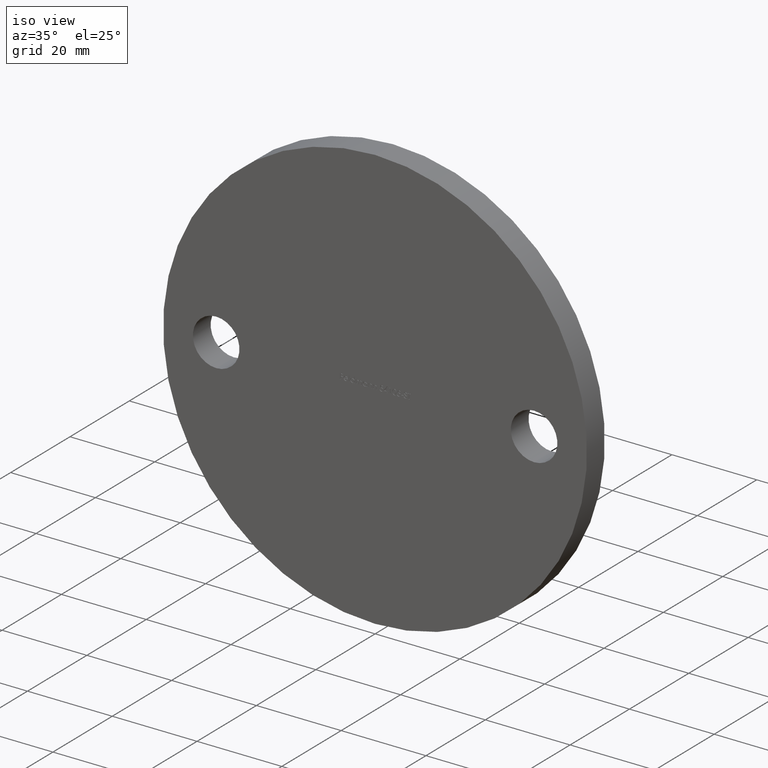
[diagram: clean part render]
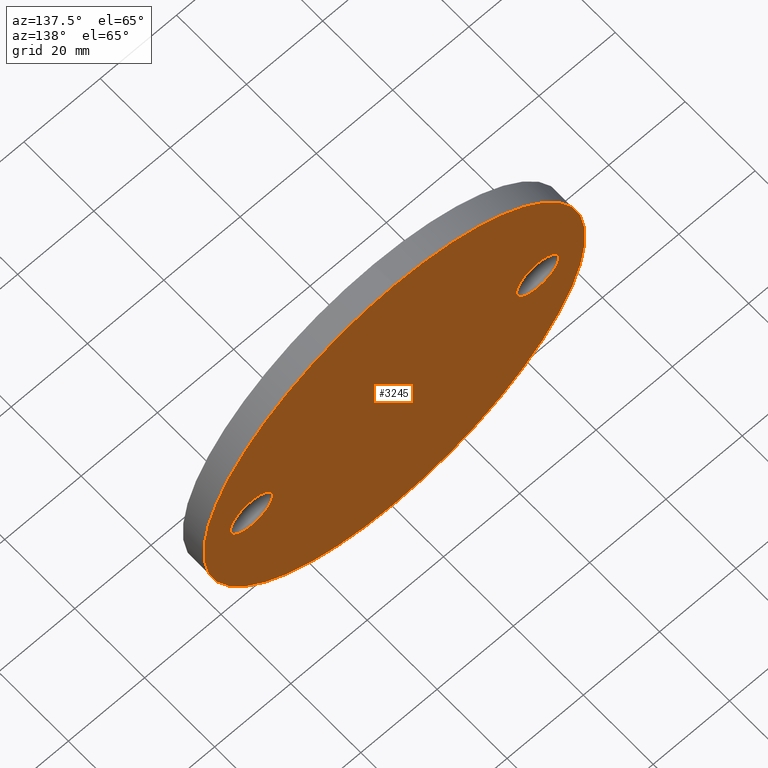
[diagram: tour spotlight — one face highlighted and labeled with its STEP entity id]
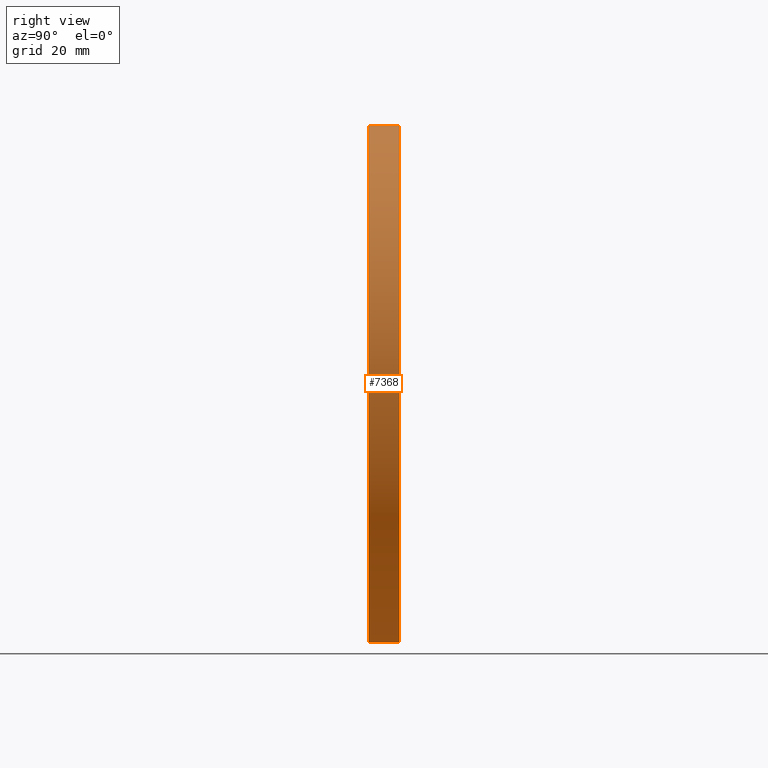
[diagram: tour spotlight — one face highlighted and labeled with its STEP entity id]
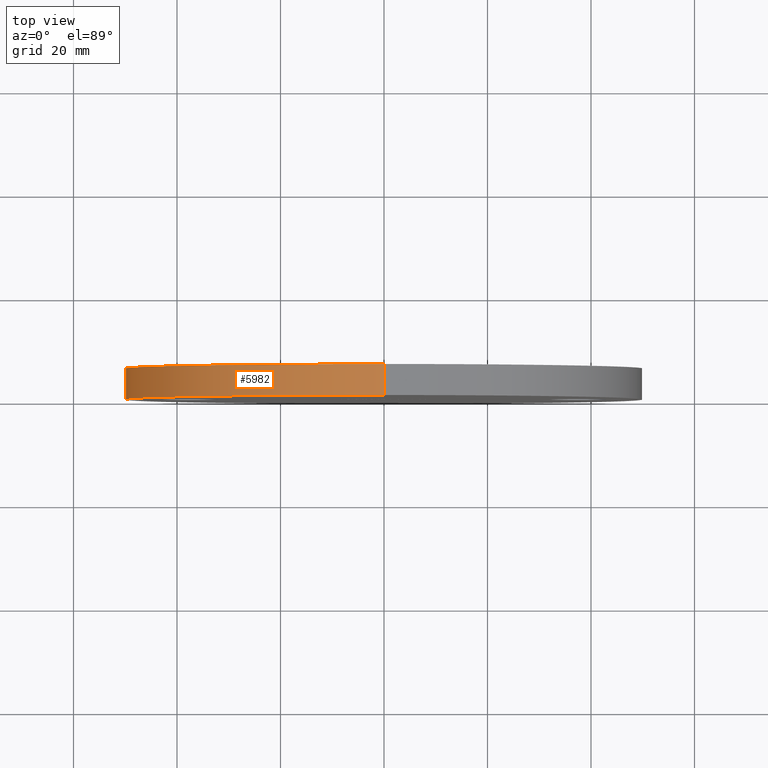
[diagram: tour spotlight — one face highlighted and labeled with its STEP entity id]
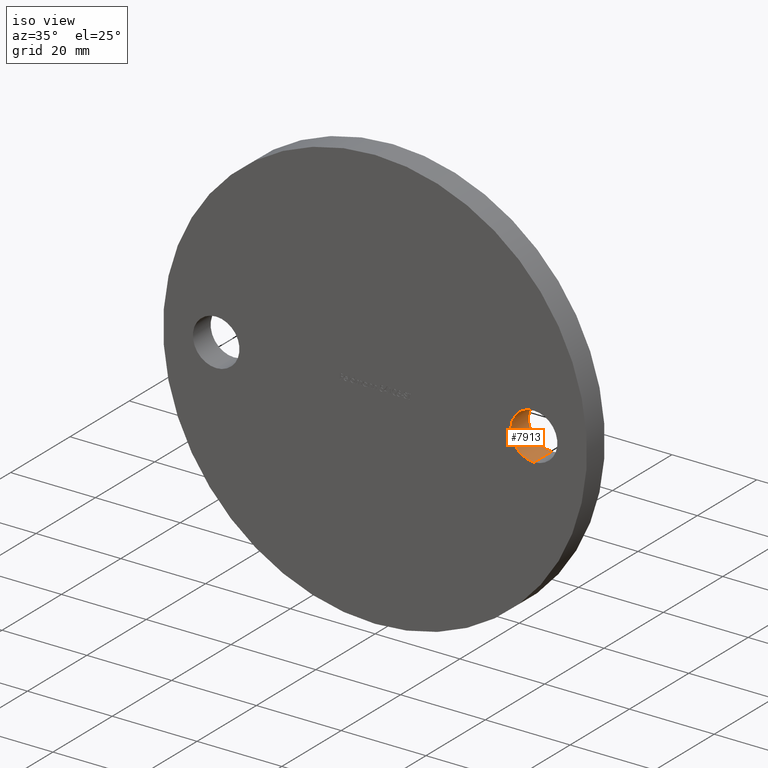
[diagram: tour spotlight — one face highlighted and labeled with its STEP entity id]
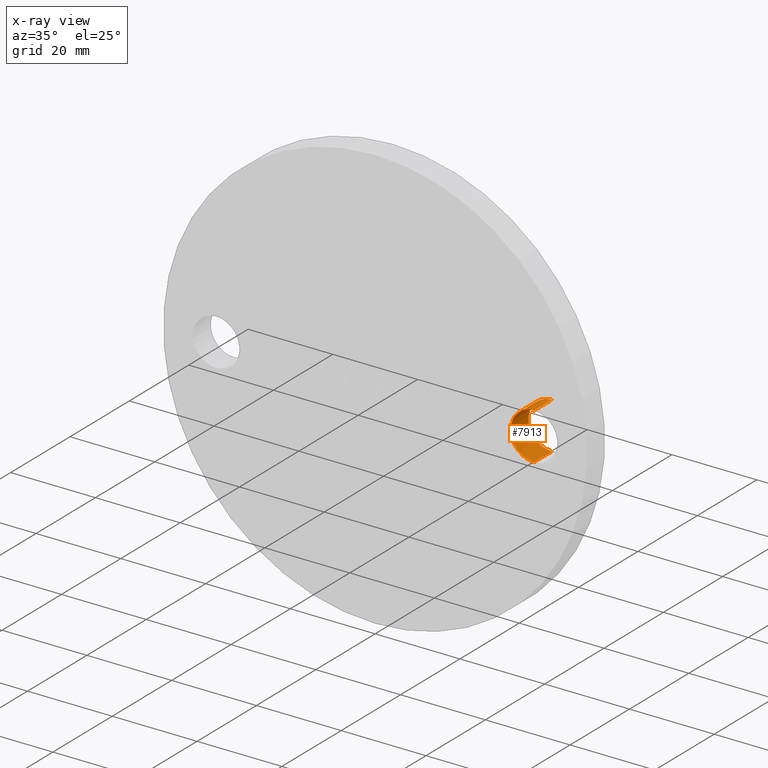
[diagram: x-ray of the same camera — body ghosted, this tour face saturated]
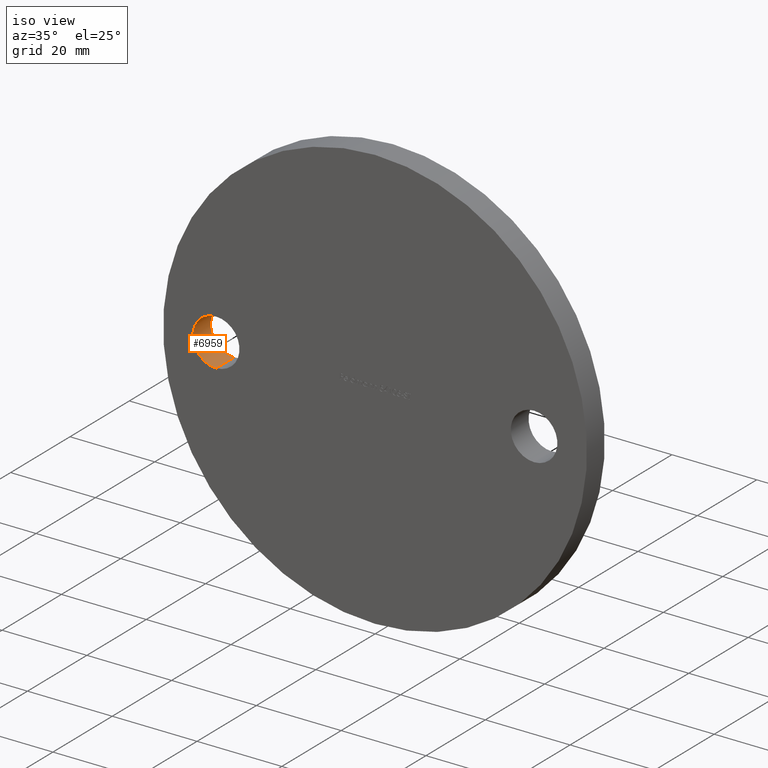
[diagram: tour spotlight — one face highlighted and labeled with its STEP entity id]
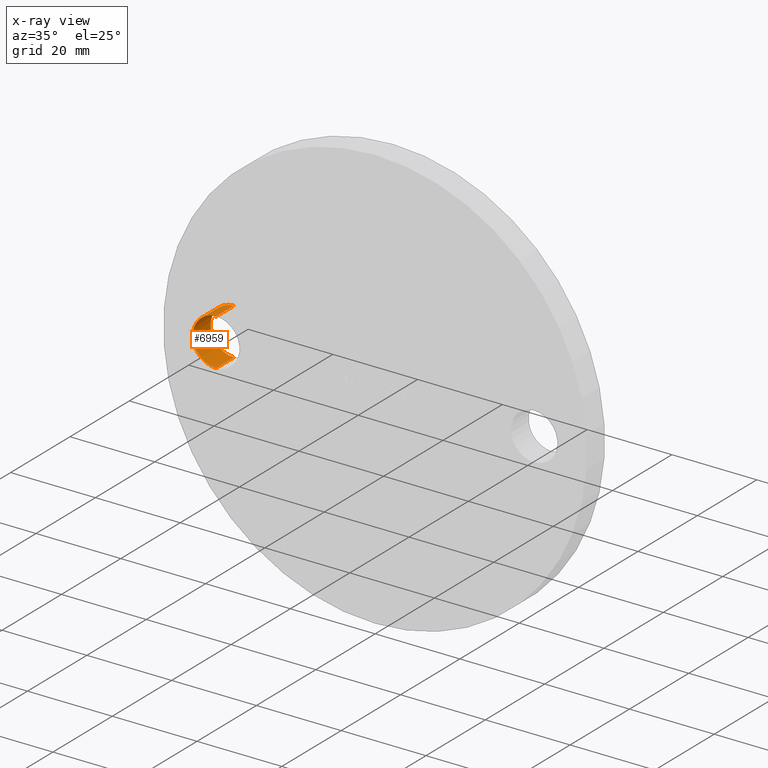
[diagram: x-ray of the same camera — body ghosted, this tour face saturated]
A machine part: a face-by-face anatomy tour. The part has 216 B-rep faces; the first image is the clean iso view, then the 5 largest visible faces are spotlighted one at a time (largest first), each with its STEP entity span.

Face 1 — auxiliary view, entity #3245. In plain terms, the highlighted planar face has unit normal (0, 1, 0).
Definition (entity closure, byte-faithful):
#35 = CARTESIAN_POINT ( 'NONE',  ( 0.0000000000000000000, 6.000000000000000000, 0.0000000000000000000 ) ) ;
#225 = EDGE_LOOP ( 'NONE', ( #6736, #2385 ) ) ;
#553 = DIRECTION ( 'NONE',  ( 0.0000000000000000000, 0.0000000000000000000, 1.000000000000000000 ) ) ;
#581 = EDGE_CURVE ( 'NONE', #11253, #3163, #9006, .T. ) ;
#842 = AXIS2_PLACEMENT_3D ( 'NONE', #1707, #7835, #4285 ) ;
#844 = CARTESIAN_POINT ( 'NONE',  ( -37.50000000000000000, 6.000000000000000000, 0.0000000000000000000 ) ) ;
#884 = DIRECTION ( 'NONE',  ( 0.0000000000000000000, -0.0000000000000000000, 1.000000000000000000 ) ) ;
#927 = ORIENTED_EDGE ( 'NONE', *, *, #11009, .F. ) ;
#1011 = DIRECTION ( 'NONE',  ( 0.0000000000000000000, 0.0000000000000000000, 1.000000000000000000 ) ) ;
#1263 = CARTESIAN_POINT ( 'NONE',  ( -37.50000000000000000, 6.000000000000000000, -5.499999999999996400 ) ) ;
#1707 = CARTESIAN_POINT ( 'NONE',  ( 37.50000000000000000, 6.000000000000000000, -9.184850993605148700E-015 ) ) ;
#2039 = EDGE_CURVE ( 'NONE', #3080, #7350, #7814, .T. ) ;
#2385 = ORIENTED_EDGE ( 'NONE', *, *, #6597, .T. ) ;
#2406 = DIRECTION ( 'NONE',  ( 0.0000000000000000000, 0.0000000000000000000, 1.000000000000000000 ) ) ;
#2523 = DIRECTION ( 'NONE',  ( 0.0000000000000000000, 1.000000000000000000, 0.0000000000000000000 ) ) ;
#2583 = AXIS2_PLACEMENT_3D ( 'NONE', #3659, #2819, #1011 ) ;
#2648 = DIRECTION ( 'NONE',  ( 0.0000000000000000000, 1.000000000000000000, 0.0000000000000000000 ) ) ;
#2804 = EDGE_CURVE ( 'NONE', #4456, #6215, #8760, .T. ) ;
#2819 = DIRECTION ( 'NONE',  ( 0.0000000000000000000, 1.000000000000000000, 0.0000000000000000000 ) ) ;
#2872 = ORIENTED_EDGE ( 'NONE', *, *, #2804, .F. ) ;
#3068 = AXIS2_PLACEMENT_3D ( 'NONE', #35, #2648, #7813 ) ;
#3080 = VERTEX_POINT ( 'NONE', #9711 ) ;
#3163 = VERTEX_POINT ( 'NONE', #9993 ) ;
#3238 = CARTESIAN_POINT ( 'NONE',  ( 37.50000000000000000, 6.000000000000000000, -9.184850993605148700E-015 ) ) ;
#3245 = ADVANCED_FACE ( 'NONE', ( #10244, #8625, #8490 ), #8692, .T. ) ;
#3599 = AXIS2_PLACEMENT_3D ( 'NONE', #844, #7974, #4349 ) ;
#3659 = CARTESIAN_POINT ( 'NONE',  ( 0.0000000000000000000, 6.000000000000000000, 0.0000000000000000000 ) ) ;
#4192 = EDGE_CURVE ( 'NONE', #6215, #4456, #10239, .T. ) ;
#4285 = DIRECTION ( 'NONE',  ( 0.0000000000000000000, 0.0000000000000000000, 1.000000000000000000 ) ) ;
#4349 = DIRECTION ( 'NONE',  ( 0.0000000000000000000, 0.0000000000000000000, 1.000000000000000000 ) ) ;
#4456 = VERTEX_POINT ( 'NONE', #9831 ) ;
#4681 = EDGE_LOOP ( 'NONE', ( #6340, #927 ) ) ;
#4859 = CIRCLE ( 'NONE', #842, 5.499999999999996400 ) ;
#5243 = DIRECTION ( 'NONE',  ( 0.0000000000000000000, 1.000000000000000000, 0.0000000000000000000 ) ) ;
#5781 = DIRECTION ( 'NONE',  ( 0.0000000000000000000, 1.000000000000000000, 0.0000000000000000000 ) ) ;
#5890 = CARTESIAN_POINT ( 'NONE',  ( -37.50000000000000000, 6.000000000000000000, 0.0000000000000000000 ) ) ;
#6011 = CARTESIAN_POINT ( 'NONE',  ( 6.123233995736766100E-015, 6.000000000000000000, 50.00000000000000000 ) ) ;
#6215 = VERTEX_POINT ( 'NONE', #1263 ) ;
#6340 = ORIENTED_EDGE ( 'NONE', *, *, #581, .F. ) ;
#6410 = AXIS2_PLACEMENT_3D ( 'NONE', #10398, #5243, #884 ) ;
#6597 = EDGE_CURVE ( 'NONE', #7350, #3080, #8314, .T. ) ;
#6736 = ORIENTED_EDGE ( 'NONE', *, *, #2039, .T. ) ;
#7350 = VERTEX_POINT ( 'NONE', #6011 ) ;
#7813 = DIRECTION ( 'NONE',  ( 0.0000000000000000000, 0.0000000000000000000, 1.000000000000000000 ) ) ;
#7814 = CIRCLE ( 'NONE', #3068, 50.00000000000000000 ) ;
#7835 = DIRECTION ( 'NONE',  ( 0.0000000000000000000, 1.000000000000000000, 0.0000000000000000000 ) ) ;
#7974 = DIRECTION ( 'NONE',  ( 0.0000000000000000000, 1.000000000000000000, 0.0000000000000000000 ) ) ;
#8314 = CIRCLE ( 'NONE', #2583, 50.00000000000000000 ) ;
#8490 = FACE_OUTER_BOUND ( 'NONE', #225, .T. ) ;
#8625 = FACE_BOUND ( 'NONE', #10474, .T. ) ;
#8692 = PLANE ( 'NONE',  #6410 ) ;
#8760 = CIRCLE ( 'NONE', #11239, 5.499999999999996400 ) ;
#9006 = CIRCLE ( 'NONE', #9782, 5.499999999999996400 ) ;
#9711 = CARTESIAN_POINT ( 'NONE',  ( 0.0000000000000000000, 6.000000000000000000, -50.00000000000000000 ) ) ;
#9782 = AXIS2_PLACEMENT_3D ( 'NONE', #3238, #5781, #553 ) ;
#9831 = CARTESIAN_POINT ( 'NONE',  ( -37.50000000000000000, 6.000000000000000000, 5.499999999999996400 ) ) ;
#9993 = CARTESIAN_POINT ( 'NONE',  ( 37.50000000000000000, 6.000000000000000000, -5.500000000000005300 ) ) ;
#10239 = CIRCLE ( 'NONE', #3599, 5.499999999999996400 ) ;
#10244 = FACE_BOUND ( 'NONE', #4681, .T. ) ;
#10398 = CARTESIAN_POINT ( 'NONE',  ( 0.0000000000000000000, 6.000000000000000000, 0.0000000000000000000 ) ) ;
#10474 = EDGE_LOOP ( 'NONE', ( #2872, #10943 ) ) ;
#10943 = ORIENTED_EDGE ( 'NONE', *, *, #4192, .F. ) ;
#10973 = CARTESIAN_POINT ( 'NONE',  ( 37.50000000000000000, 6.000000000000000000, 5.499999999999986700 ) ) ;
#11009 = EDGE_CURVE ( 'NONE', #3163, #11253, #4859, .T. ) ;
#11239 = AXIS2_PLACEMENT_3D ( 'NONE', #5890, #2523, #2406 ) ;
#11253 = VERTEX_POINT ( 'NONE', #10973 ) ;

Face 2 — right view, entity #7368. In plain terms, the highlighted cylindrical surface (partial cylindrical patch) has radius 50 mm, axis along (-0, -1, -0).
Definition (entity closure, byte-faithful):
#146 = CARTESIAN_POINT ( 'NONE',  ( 0.0000000000000000000, 6.000000000000000000, 0.0000000000000000000 ) ) ;
#272 = VERTEX_POINT ( 'NONE', #4887 ) ;
#374 = CARTESIAN_POINT ( 'NONE',  ( 6.123233995736766100E-015, 6.000000000000000000, 50.00000000000000000 ) ) ;
#654 = CARTESIAN_POINT ( 'NONE',  ( 6.123233995736766100E-015, 0.0000000000000000000, 50.00000000000000000 ) ) ;
#1011 = DIRECTION ( 'NONE',  ( 0.0000000000000000000, 0.0000000000000000000, 1.000000000000000000 ) ) ;
#2583 = AXIS2_PLACEMENT_3D ( 'NONE', #3659, #2819, #1011 ) ;
#2819 = DIRECTION ( 'NONE',  ( 0.0000000000000000000, 1.000000000000000000, 0.0000000000000000000 ) ) ;
#3080 = VERTEX_POINT ( 'NONE', #9711 ) ;
#3098 = ORIENTED_EDGE ( 'NONE', *, *, #8790, .T. ) ;
#3458 = EDGE_CURVE ( 'NONE', #3080, #272, #6847, .T. ) ;
#3648 = ORIENTED_EDGE ( 'NONE', *, *, #3458, .F. ) ;
#3659 = CARTESIAN_POINT ( 'NONE',  ( 0.0000000000000000000, 6.000000000000000000, 0.0000000000000000000 ) ) ;
#3854 = VERTEX_POINT ( 'NONE', #654 ) ;
#4213 = AXIS2_PLACEMENT_3D ( 'NONE', #9298, #10168, #6702 ) ;
#4393 = FACE_OUTER_BOUND ( 'NONE', #6897, .T. ) ;
#4440 = VECTOR ( 'NONE', #4508, 1000.000000000000000 ) ;
#4451 = DIRECTION ( 'NONE',  ( 0.0000000000000000000, 0.0000000000000000000, -1.000000000000000000 ) ) ;
#4508 = DIRECTION ( 'NONE',  ( -0.0000000000000000000, -1.000000000000000000, -0.0000000000000000000 ) ) ;
#4587 = EDGE_CURVE ( 'NONE', #7350, #3854, #7125, .T. ) ;
#4771 = DIRECTION ( 'NONE',  ( -0.0000000000000000000, -1.000000000000000000, -0.0000000000000000000 ) ) ;
#4887 = CARTESIAN_POINT ( 'NONE',  ( 0.0000000000000000000, 0.0000000000000000000, -50.00000000000000000 ) ) ;
#5369 = DIRECTION ( 'NONE',  ( -0.0000000000000000000, -1.000000000000000000, -0.0000000000000000000 ) ) ;
#6011 = CARTESIAN_POINT ( 'NONE',  ( 6.123233995736766100E-015, 6.000000000000000000, 50.00000000000000000 ) ) ;
#6108 = CIRCLE ( 'NONE', #4213, 50.00000000000000000 ) ;
#6597 = EDGE_CURVE ( 'NONE', #7350, #3080, #8314, .T. ) ;
#6702 = DIRECTION ( 'NONE',  ( 0.0000000000000000000, 0.0000000000000000000, 1.000000000000000000 ) ) ;
#6847 = LINE ( 'NONE', #7190, #4440 ) ;
#6897 = EDGE_LOOP ( 'NONE', ( #9228, #8357, #3098, #3648 ) ) ;
#7125 = LINE ( 'NONE', #374, #11061 ) ;
#7190 = CARTESIAN_POINT ( 'NONE',  ( 0.0000000000000000000, 6.000000000000000000, -50.00000000000000000 ) ) ;
#7350 = VERTEX_POINT ( 'NONE', #6011 ) ;
#7368 = ADVANCED_FACE ( 'NONE', ( #4393 ), #8182, .T. ) ;
#8182 = CYLINDRICAL_SURFACE ( 'NONE', #9932, 50.00000000000000000 ) ;
#8314 = CIRCLE ( 'NONE', #2583, 50.00000000000000000 ) ;
#8357 = ORIENTED_EDGE ( 'NONE', *, *, #4587, .T. ) ;
#8790 = EDGE_CURVE ( 'NONE', #3854, #272, #6108, .T. ) ;
#9228 = ORIENTED_EDGE ( 'NONE', *, *, #6597, .F. ) ;
#9298 = CARTESIAN_POINT ( 'NONE',  ( 0.0000000000000000000, 0.0000000000000000000, 0.0000000000000000000 ) ) ;
#9711 = CARTESIAN_POINT ( 'NONE',  ( 0.0000000000000000000, 6.000000000000000000, -50.00000000000000000 ) ) ;
#9932 = AXIS2_PLACEMENT_3D ( 'NONE', #146, #5369, #4451 ) ;
#10168 = DIRECTION ( 'NONE',  ( 0.0000000000000000000, 1.000000000000000000, 0.0000000000000000000 ) ) ;
#11061 = VECTOR ( 'NONE', #4771, 1000.000000000000000 ) ;

Face 3 — top view, entity #5982. In plain terms, the highlighted cylindrical surface (partial cylindrical patch) has radius 50 mm, axis along (-0, -1, -0).
Definition (entity closure, byte-faithful):
#35 = CARTESIAN_POINT ( 'NONE',  ( 0.0000000000000000000, 6.000000000000000000, 0.0000000000000000000 ) ) ;
#272 = VERTEX_POINT ( 'NONE', #4887 ) ;
#325 = DIRECTION ( 'NONE',  ( 0.0000000000000000000, 1.000000000000000000, 0.0000000000000000000 ) ) ;
#374 = CARTESIAN_POINT ( 'NONE',  ( 6.123233995736766100E-015, 6.000000000000000000, 50.00000000000000000 ) ) ;
#654 = CARTESIAN_POINT ( 'NONE',  ( 6.123233995736766100E-015, 0.0000000000000000000, 50.00000000000000000 ) ) ;
#2039 = EDGE_CURVE ( 'NONE', #3080, #7350, #7814, .T. ) ;
#2041 = CARTESIAN_POINT ( 'NONE',  ( 0.0000000000000000000, 6.000000000000000000, 0.0000000000000000000 ) ) ;
#2527 = ORIENTED_EDGE ( 'NONE', *, *, #2039, .F. ) ;
#2610 = EDGE_LOOP ( 'NONE', ( #9136, #2527, #10013, #6207 ) ) ;
#2648 = DIRECTION ( 'NONE',  ( 0.0000000000000000000, 1.000000000000000000, 0.0000000000000000000 ) ) ;
#3068 = AXIS2_PLACEMENT_3D ( 'NONE', #35, #2648, #7813 ) ;
#3080 = VERTEX_POINT ( 'NONE', #9711 ) ;
#3458 = EDGE_CURVE ( 'NONE', #3080, #272, #6847, .T. ) ;
#3722 = FACE_OUTER_BOUND ( 'NONE', #2610, .T. ) ;
#3854 = VERTEX_POINT ( 'NONE', #654 ) ;
#3908 = AXIS2_PLACEMENT_3D ( 'NONE', #2041, #4684, #9770 ) ;
#4440 = VECTOR ( 'NONE', #4508, 1000.000000000000000 ) ;
#4508 = DIRECTION ( 'NONE',  ( -0.0000000000000000000, -1.000000000000000000, -0.0000000000000000000 ) ) ;
#4587 = EDGE_CURVE ( 'NONE', #7350, #3854, #7125, .T. ) ;
#4684 = DIRECTION ( 'NONE',  ( -0.0000000000000000000, -1.000000000000000000, -0.0000000000000000000 ) ) ;
#4771 = DIRECTION ( 'NONE',  ( -0.0000000000000000000, -1.000000000000000000, -0.0000000000000000000 ) ) ;
#4887 = CARTESIAN_POINT ( 'NONE',  ( 0.0000000000000000000, 0.0000000000000000000, -50.00000000000000000 ) ) ;
#5982 = ADVANCED_FACE ( 'NONE', ( #3722 ), #10909, .T. ) ;
#6011 = CARTESIAN_POINT ( 'NONE',  ( 6.123233995736766100E-015, 6.000000000000000000, 50.00000000000000000 ) ) ;
#6207 = ORIENTED_EDGE ( 'NONE', *, *, #9945, .T. ) ;
#6339 = DIRECTION ( 'NONE',  ( 0.0000000000000000000, 0.0000000000000000000, 1.000000000000000000 ) ) ;
#6564 = AXIS2_PLACEMENT_3D ( 'NONE', #8246, #325, #6339 ) ;
#6847 = LINE ( 'NONE', #7190, #4440 ) ;
#7125 = LINE ( 'NONE', #374, #11061 ) ;
#7190 = CARTESIAN_POINT ( 'NONE',  ( 0.0000000000000000000, 6.000000000000000000, -50.00000000000000000 ) ) ;
#7324 = CIRCLE ( 'NONE', #6564, 50.00000000000000000 ) ;
#7350 = VERTEX_POINT ( 'NONE', #6011 ) ;
#7813 = DIRECTION ( 'NONE',  ( 0.0000000000000000000, 0.0000000000000000000, 1.000000000000000000 ) ) ;
#7814 = CIRCLE ( 'NONE', #3068, 50.00000000000000000 ) ;
#8246 = CARTESIAN_POINT ( 'NONE',  ( 0.0000000000000000000, 0.0000000000000000000, 0.0000000000000000000 ) ) ;
#9136 = ORIENTED_EDGE ( 'NONE', *, *, #4587, .F. ) ;
#9711 = CARTESIAN_POINT ( 'NONE',  ( 0.0000000000000000000, 6.000000000000000000, -50.00000000000000000 ) ) ;
#9770 = DIRECTION ( 'NONE',  ( 0.0000000000000000000, 0.0000000000000000000, -1.000000000000000000 ) ) ;
#9945 = EDGE_CURVE ( 'NONE', #272, #3854, #7324, .T. ) ;
#10013 = ORIENTED_EDGE ( 'NONE', *, *, #3458, .T. ) ;
#10909 = CYLINDRICAL_SURFACE ( 'NONE', #3908, 50.00000000000000000 ) ;
#11061 = VECTOR ( 'NONE', #4771, 1000.000000000000000 ) ;

Face 4 — iso view, entity #7913. An x-ray twin of the same camera follows (body ghosted, this face saturated) — the face is partly hidden behind the body. In plain terms, the highlighted cylindrical surface (edge-blend (fillet) strip) has radius 5.5 mm, axis along (-0, 1, -0).
Definition (entity closure, byte-faithful):
#153 = CARTESIAN_POINT ( 'NONE',  ( 37.50000000000000000, 0.0000000000000000000, 5.499999999999986700 ) ) ;
#192 = DIRECTION ( 'NONE',  ( 0.0000000000000000000, 0.0000000000000000000, 1.000000000000000000 ) ) ;
#260 = CARTESIAN_POINT ( 'NONE',  ( 37.50000000000000000, 0.0000000000000000000, -5.500000000000005300 ) ) ;
#750 = CARTESIAN_POINT ( 'NONE',  ( 37.50000000000000000, 0.0000000000000000000, -5.500000000000005300 ) ) ;
#842 = AXIS2_PLACEMENT_3D ( 'NONE', #1707, #7835, #4285 ) ;
#1116 = CARTESIAN_POINT ( 'NONE',  ( 37.50000000000000000, 0.0000000000000000000, -9.184850993605148700E-015 ) ) ;
#1258 = AXIS2_PLACEMENT_3D ( 'NONE', #8594, #7006, #5180 ) ;
#1486 = FACE_OUTER_BOUND ( 'NONE', #4902, .T. ) ;
#1707 = CARTESIAN_POINT ( 'NONE',  ( 37.50000000000000000, 6.000000000000000000, -9.184850993605148700E-015 ) ) ;
#1943 = CARTESIAN_POINT ( 'NONE',  ( 37.50000000000000000, 0.0000000000000000000, 5.499999999999986700 ) ) ;
#2054 = EDGE_CURVE ( 'NONE', #2207, #3163, #2226, .T. ) ;
#2207 = VERTEX_POINT ( 'NONE', #260 ) ;
#2226 = LINE ( 'NONE', #750, #3887 ) ;
#3163 = VERTEX_POINT ( 'NONE', #9993 ) ;
#3887 = VECTOR ( 'NONE', #9635, 1000.000000000000000 ) ;
#4000 = LINE ( 'NONE', #153, #8211 ) ;
#4285 = DIRECTION ( 'NONE',  ( 0.0000000000000000000, 0.0000000000000000000, 1.000000000000000000 ) ) ;
#4382 = EDGE_CURVE ( 'NONE', #9899, #11253, #4000, .T. ) ;
#4483 = EDGE_CURVE ( 'NONE', #2207, #9899, #9967, .T. ) ;
#4859 = CIRCLE ( 'NONE', #842, 5.499999999999996400 ) ;
#4902 = EDGE_LOOP ( 'NONE', ( #10872, #5413, #7387, #10045 ) ) ;
#5180 = DIRECTION ( 'NONE',  ( 0.0000000000000000000, 0.0000000000000000000, 1.000000000000000000 ) ) ;
#5413 = ORIENTED_EDGE ( 'NONE', *, *, #2054, .T. ) ;
#5485 = DIRECTION ( 'NONE',  ( -0.0000000000000000000, 1.000000000000000000, -0.0000000000000000000 ) ) ;
#7006 = DIRECTION ( 'NONE',  ( -0.0000000000000000000, 1.000000000000000000, -0.0000000000000000000 ) ) ;
#7387 = ORIENTED_EDGE ( 'NONE', *, *, #11009, .T. ) ;
#7516 = AXIS2_PLACEMENT_3D ( 'NONE', #1116, #8059, #192 ) ;
#7835 = DIRECTION ( 'NONE',  ( 0.0000000000000000000, 1.000000000000000000, 0.0000000000000000000 ) ) ;
#7913 = ADVANCED_FACE ( 'NONE', ( #1486 ), #10471, .F. ) ;
#8059 = DIRECTION ( 'NONE',  ( 0.0000000000000000000, 1.000000000000000000, 0.0000000000000000000 ) ) ;
#8211 = VECTOR ( 'NONE', #5485, 1000.000000000000000 ) ;
#8594 = CARTESIAN_POINT ( 'NONE',  ( 37.50000000000000000, 0.0000000000000000000, -9.184850993605148700E-015 ) ) ;
#9635 = DIRECTION ( 'NONE',  ( -0.0000000000000000000, 1.000000000000000000, -0.0000000000000000000 ) ) ;
#9899 = VERTEX_POINT ( 'NONE', #1943 ) ;
#9967 = CIRCLE ( 'NONE', #7516, 5.499999999999996400 ) ;
#9993 = CARTESIAN_POINT ( 'NONE',  ( 37.50000000000000000, 6.000000000000000000, -5.500000000000005300 ) ) ;
#10045 = ORIENTED_EDGE ( 'NONE', *, *, #4382, .F. ) ;
#10471 = CYLINDRICAL_SURFACE ( 'NONE', #1258, 5.499999999999996400 ) ;
#10872 = ORIENTED_EDGE ( 'NONE', *, *, #4483, .F. ) ;
#10973 = CARTESIAN_POINT ( 'NONE',  ( 37.50000000000000000, 6.000000000000000000, 5.499999999999986700 ) ) ;
#11009 = EDGE_CURVE ( 'NONE', #3163, #11253, #4859, .T. ) ;
#11253 = VERTEX_POINT ( 'NONE', #10973 ) ;

Face 5 — iso view, entity #6959. An x-ray twin of the same camera follows (body ghosted, this face saturated) — the face is partly hidden behind the body. In plain terms, the highlighted cylindrical surface (edge-blend (fillet) strip) has radius 5.5 mm, axis along (-0, 1, -0).
Definition (entity closure, byte-faithful):
#131 = CARTESIAN_POINT ( 'NONE',  ( -37.50000000000000000, 0.0000000000000000000, 5.499999999999996400 ) ) ;
#719 = CARTESIAN_POINT ( 'NONE',  ( -37.50000000000000000, 0.0000000000000000000, 5.499999999999996400 ) ) ;
#844 = CARTESIAN_POINT ( 'NONE',  ( -37.50000000000000000, 6.000000000000000000, 0.0000000000000000000 ) ) ;
#1263 = CARTESIAN_POINT ( 'NONE',  ( -37.50000000000000000, 6.000000000000000000, -5.499999999999996400 ) ) ;
#1365 = ORIENTED_EDGE ( 'NONE', *, *, #6859, .F. ) ;
#2421 = EDGE_CURVE ( 'NONE', #4990, #8744, #7262, .T. ) ;
#2430 = CARTESIAN_POINT ( 'NONE',  ( -37.50000000000000000, 0.0000000000000000000, 0.0000000000000000000 ) ) ;
#2509 = DIRECTION ( 'NONE',  ( 0.0000000000000000000, 1.000000000000000000, 0.0000000000000000000 ) ) ;
#2684 = ORIENTED_EDGE ( 'NONE', *, *, #4192, .T. ) ;
#3005 = VECTOR ( 'NONE', #11123, 1000.000000000000000 ) ;
#3129 = VECTOR ( 'NONE', #4838, 1000.000000000000000 ) ;
#3599 = AXIS2_PLACEMENT_3D ( 'NONE', #844, #7974, #4349 ) ;
#3831 = CARTESIAN_POINT ( 'NONE',  ( -37.50000000000000000, 0.0000000000000000000, -5.499999999999996400 ) ) ;
#4192 = EDGE_CURVE ( 'NONE', #6215, #4456, #10239, .T. ) ;
#4308 = DIRECTION ( 'NONE',  ( -0.0000000000000000000, 1.000000000000000000, -0.0000000000000000000 ) ) ;
#4349 = DIRECTION ( 'NONE',  ( 0.0000000000000000000, 0.0000000000000000000, 1.000000000000000000 ) ) ;
#4456 = VERTEX_POINT ( 'NONE', #9831 ) ;
#4838 = DIRECTION ( 'NONE',  ( -0.0000000000000000000, 1.000000000000000000, -0.0000000000000000000 ) ) ;
#4990 = VERTEX_POINT ( 'NONE', #8805 ) ;
#5193 = FACE_OUTER_BOUND ( 'NONE', #11291, .T. ) ;
#5197 = AXIS2_PLACEMENT_3D ( 'NONE', #2430, #2509, #10173 ) ;
#5444 = LINE ( 'NONE', #3831, #3129 ) ;
#6100 = CARTESIAN_POINT ( 'NONE',  ( -37.50000000000000000, 0.0000000000000000000, 0.0000000000000000000 ) ) ;
#6127 = CYLINDRICAL_SURFACE ( 'NONE', #6424, 5.499999999999996400 ) ;
#6131 = DIRECTION ( 'NONE',  ( 0.0000000000000000000, 0.0000000000000000000, 1.000000000000000000 ) ) ;
#6215 = VERTEX_POINT ( 'NONE', #1263 ) ;
#6424 = AXIS2_PLACEMENT_3D ( 'NONE', #6100, #4308, #6131 ) ;
#6859 = EDGE_CURVE ( 'NONE', #8744, #4456, #10069, .T. ) ;
#6959 = ADVANCED_FACE ( 'NONE', ( #5193 ), #6127, .F. ) ;
#7262 = CIRCLE ( 'NONE', #5197, 5.499999999999996400 ) ;
#7630 = EDGE_CURVE ( 'NONE', #4990, #6215, #5444, .T. ) ;
#7974 = DIRECTION ( 'NONE',  ( 0.0000000000000000000, 1.000000000000000000, 0.0000000000000000000 ) ) ;
#8421 = ORIENTED_EDGE ( 'NONE', *, *, #7630, .T. ) ;
#8744 = VERTEX_POINT ( 'NONE', #131 ) ;
#8805 = CARTESIAN_POINT ( 'NONE',  ( -37.50000000000000000, 0.0000000000000000000, -5.499999999999996400 ) ) ;
#9529 = ORIENTED_EDGE ( 'NONE', *, *, #2421, .F. ) ;
#9831 = CARTESIAN_POINT ( 'NONE',  ( -37.50000000000000000, 6.000000000000000000, 5.499999999999996400 ) ) ;
#10069 = LINE ( 'NONE', #719, #3005 ) ;
#10173 = DIRECTION ( 'NONE',  ( 0.0000000000000000000, 0.0000000000000000000, 1.000000000000000000 ) ) ;
#10239 = CIRCLE ( 'NONE', #3599, 5.499999999999996400 ) ;
#11123 = DIRECTION ( 'NONE',  ( -0.0000000000000000000, 1.000000000000000000, -0.0000000000000000000 ) ) ;
#11291 = EDGE_LOOP ( 'NONE', ( #9529, #8421, #2684, #1365 ) ) ;